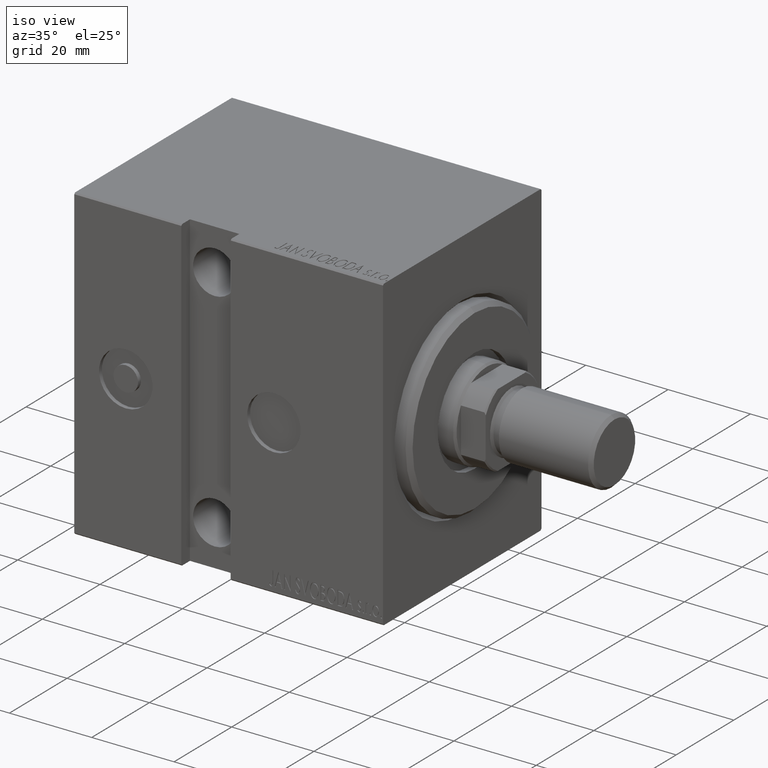
[diagram: clean part render]
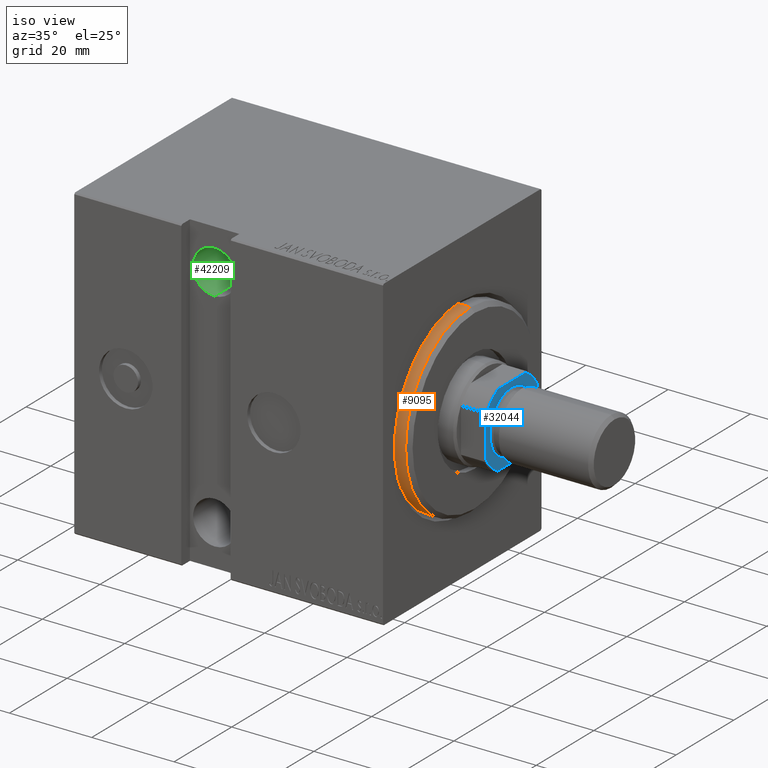
[diagram: same view with three faces highlighted in distinct colors, each labeled with its STEP entity id]
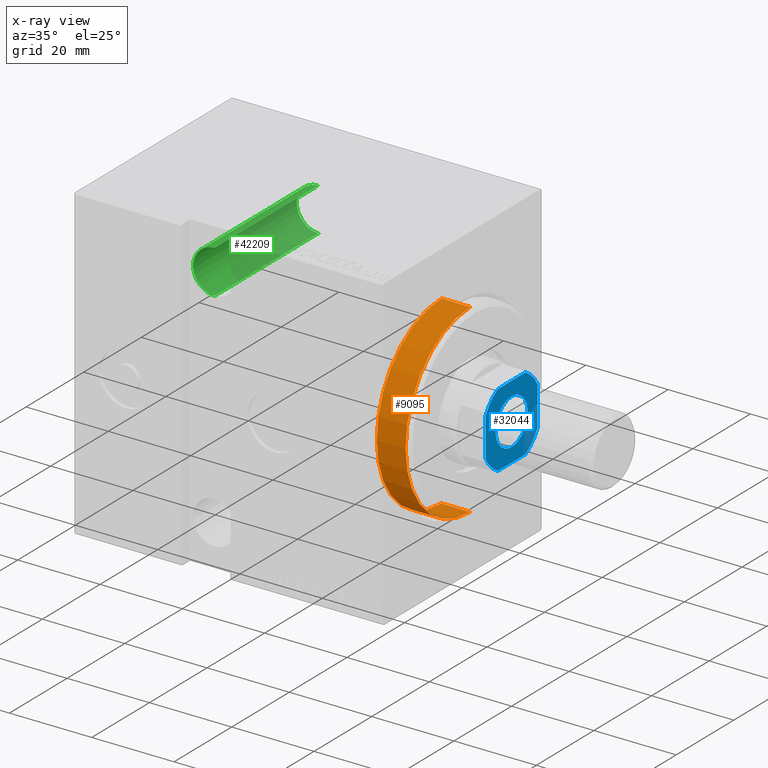
[diagram: x-ray of the same camera — body ghosted, the three highlighted faces saturated]
A machine part, iso view with three faces highlighted in distinct colors.
The next image is the same camera in x-ray (body ghosted, the three faces saturated) — at least one of them is partly hidden behind the body in this view.
Their STEP definitions:

[orange] entity #9095 — the highlighted cylindrical surface (partial cylindrical patch) has radius 22.5 mm, axis along (-1, -0, -0).
#107 = ORIENTED_EDGE ( 'NONE', *, *, #3225, .T. ) ;
#936 = CARTESIAN_POINT ( 'NONE',  ( 1.999999999999978462, 0.000000000000000000, 22.50000000000000355 ) ) ;
#2527 = DIRECTION ( 'NONE',  ( 0.000000000000000000, 0.000000000000000000, -1.000000000000000000 ) ) ;
#3225 = EDGE_CURVE ( 'NONE', #28631, #26593, #9223, .T. ) ;
#3390 = FACE_OUTER_BOUND ( 'NONE', #12923, .T. ) ;
#5623 = EDGE_CURVE ( 'NONE', #15018, #42152, #29394, .T. ) ;
#7357 = CARTESIAN_POINT ( 'NONE',  ( -5.000000000000000000, 0.000000000000000000, 0.000000000000000000 ) ) ;
#9095 = ADVANCED_FACE ( 'NONE', ( #3390 ), #23363, .T. ) ;
#9223 = CIRCLE ( 'NONE', #31419, 22.50000000000000355 ) ;
#10453 = ORIENTED_EDGE ( 'NONE', *, *, #35768, .T. ) ;
#12923 = EDGE_LOOP ( 'NONE', ( #40783, #107, #10453, #23501 ) ) ;
#15018 = VERTEX_POINT ( 'NONE', #29993 ) ;
#16567 = VECTOR ( 'NONE', #24161, 1000.000000000000000 ) ;
#17406 = DIRECTION ( 'NONE',  ( -1.000000000000000000, -0.000000000000000000, -0.000000000000000000 ) ) ;
#17854 = CARTESIAN_POINT ( 'NONE',  ( 3.000000000000000000, 2.755455298081545172E-15, -22.50000000000000355 ) ) ;
#21052 = AXIS2_PLACEMENT_3D ( 'NONE', #7357, #26445, #23422 ) ;
#22700 = DIRECTION ( 'NONE',  ( -1.000000000000000000, 0.000000000000000000, 0.000000000000000000 ) ) ;
#23363 = CYLINDRICAL_SURFACE ( 'NONE', #23943, 22.50000000000000355 ) ;
#23422 = DIRECTION ( 'NONE',  ( 0.000000000000000000, 0.000000000000000000, -1.000000000000000000 ) ) ;
#23501 = ORIENTED_EDGE ( 'NONE', *, *, #5623, .T. ) ;
#23943 = AXIS2_PLACEMENT_3D ( 'NONE', #27048, #30092, #37254 ) ;
#24161 = DIRECTION ( 'NONE',  ( -1.000000000000000000, -0.000000000000000000, -0.000000000000000000 ) ) ;
#25152 = VECTOR ( 'NONE', #17406, 1000.000000000000000 ) ;
#25800 = EDGE_CURVE ( 'NONE', #28631, #42152, #33935, .T. ) ;
#26445 = DIRECTION ( 'NONE',  ( 1.000000000000000000, 0.000000000000000000, 0.000000000000000000 ) ) ;
#26593 = VERTEX_POINT ( 'NONE', #936 ) ;
#27048 = CARTESIAN_POINT ( 'NONE',  ( 3.000000000000000000, 0.000000000000000000, 0.000000000000000000 ) ) ;
#27699 = CARTESIAN_POINT ( 'NONE',  ( 1.999999999999978462, 2.755455298081545172E-15, -22.50000000000000355 ) ) ;
#28631 = VERTEX_POINT ( 'NONE', #27699 ) ;
#29394 = CIRCLE ( 'NONE', #21052, 22.50000000000000355 ) ;
#29993 = CARTESIAN_POINT ( 'NONE',  ( -5.000000000000000000, 0.000000000000000000, 22.50000000000000355 ) ) ;
#30092 = DIRECTION ( 'NONE',  ( -1.000000000000000000, -0.000000000000000000, -0.000000000000000000 ) ) ;
#30243 = CARTESIAN_POINT ( 'NONE',  ( 3.000000000000000000, 0.000000000000000000, 22.50000000000000355 ) ) ;
#30592 = CARTESIAN_POINT ( 'NONE',  ( -5.000000000000000000, 2.755455298081545172E-15, -22.50000000000000355 ) ) ;
#31419 = AXIS2_PLACEMENT_3D ( 'NONE', #32265, #22700, #2527 ) ;
#32265 = CARTESIAN_POINT ( 'NONE',  ( 1.999999999999978462, 0.000000000000000000, 0.000000000000000000 ) ) ;
#33935 = LINE ( 'NONE', #17854, #16567 ) ;
#35768 = EDGE_CURVE ( 'NONE', #26593, #15018, #39792, .T. ) ;
#37254 = DIRECTION ( 'NONE',  ( 0.000000000000000000, 0.000000000000000000, 1.000000000000000000 ) ) ;
#39792 = LINE ( 'NONE', #30243, #25152 ) ;
#40783 = ORIENTED_EDGE ( 'NONE', *, *, #25800, .F. ) ;
#42152 = VERTEX_POINT ( 'NONE', #30592 ) ;

[blue] entity #32044 — the highlighted planar face has unit normal (1, 0, -0).
#12 = FACE_BOUND ( 'NONE', #20397, .T. ) ;
#388 = VERTEX_POINT ( 'NONE', #16647 ) ;
#454 = DIRECTION ( 'NONE',  ( -0.000000000000000000, 0.000000000000000000, 1.000000000000000000 ) ) ;
#1040 = CARTESIAN_POINT ( 'NONE',  ( -9.000000000000001776, 4.799999999999986500, 77.00000000000001421 ) ) ;
#1482 = DIRECTION ( 'NONE',  ( 1.000000000000000000, 0.000000000000000000, 0.000000000000000000 ) ) ;
#1707 = CARTESIAN_POINT ( 'NONE',  ( 0.000000000000000000, 0.000000000000000000, 77.00000000000001421 ) ) ;
#2687 = CARTESIAN_POINT ( 'NONE',  ( -4.799999999999990941, 8.999999999999998224, 77.00000000000001421 ) ) ;
#2973 = DIRECTION ( 'NONE',  ( 1.000000000000000000, 0.000000000000000000, 0.000000000000000000 ) ) ;
#3434 = DIRECTION ( 'NONE',  ( -1.000000000000000000, -0.000000000000000000, -0.000000000000000000 ) ) ;
#3526 = VERTEX_POINT ( 'NONE', #2687 ) ;
#5241 = VERTEX_POINT ( 'NONE', #24692 ) ;
#5347 = AXIS2_PLACEMENT_3D ( 'NONE', #6134, #42184, #39544 ) ;
#6134 = CARTESIAN_POINT ( 'NONE',  ( 0.000000000000000000, 0.000000000000000000, 77.00000000000001421 ) ) ;
#6302 = EDGE_CURVE ( 'NONE', #29843, #7428, #40692, .T. ) ;
#6342 = DIRECTION ( 'NONE',  ( 1.000000000000000000, 0.000000000000000000, 0.000000000000000000 ) ) ;
#6961 = FACE_OUTER_BOUND ( 'NONE', #15276, .T. ) ;
#7117 = AXIS2_PLACEMENT_3D ( 'NONE', #25964, #42695, #13360 ) ;
#7394 = EDGE_CURVE ( 'NONE', #26230, #388, #9179, .T. ) ;
#7428 = VERTEX_POINT ( 'NONE', #12643 ) ;
#7825 = CIRCLE ( 'NONE', #7117, 10.19999999999999929 ) ;
#8982 = CARTESIAN_POINT ( 'NONE',  ( -4.799999999999995381, -9.000000000000001776, 77.00000000000001421 ) ) ;
#9021 = EDGE_CURVE ( 'NONE', #33212, #12447, #38483, .T. ) ;
#9179 = LINE ( 'NONE', #15469, #28718 ) ;
#9355 = CARTESIAN_POINT ( 'NONE',  ( 5.550000000000013145, 0.000000000000000000, 77.00000000000001421 ) ) ;
#9677 = EDGE_CURVE ( 'NONE', #12447, #33212, #27409, .T. ) ;
#10159 = LINE ( 'NONE', #35797, #37541 ) ;
#10885 = DIRECTION ( 'NONE',  ( 1.000000000000000000, 0.000000000000000000, 0.000000000000000000 ) ) ;
#12319 = ORIENTED_EDGE ( 'NONE', *, *, #32333, .T. ) ;
#12447 = VERTEX_POINT ( 'NONE', #21979 ) ;
#12643 = CARTESIAN_POINT ( 'NONE',  ( 4.800000000000006928, -9.000000000000001776, 77.00000000000001421 ) ) ;
#12769 = DIRECTION ( 'NONE',  ( -1.927470528863119049E-16, 1.000000000000000000, -0.000000000000000000 ) ) ;
#12785 = VERTEX_POINT ( 'NONE', #23143 ) ;
#12966 = AXIS2_PLACEMENT_3D ( 'NONE', #1707, #17982, #1482 ) ;
#13244 = PLANE ( 'NONE',  #19532 ) ;
#13360 = DIRECTION ( 'NONE',  ( 1.000000000000000000, 0.000000000000000000, 0.000000000000000000 ) ) ;
#13880 = ORIENTED_EDGE ( 'NONE', *, *, #34584, .T. ) ;
#14629 = EDGE_CURVE ( 'NONE', #7428, #35190, #33775, .T. ) ;
#14798 = ORIENTED_EDGE ( 'NONE', *, *, #23859, .T. ) ;
#15276 = EDGE_LOOP ( 'NONE', ( #28086, #32569, #12319, #14798, #37754, #13880, #29164, #24572 ) ) ;
#15469 = CARTESIAN_POINT ( 'NONE',  ( -9.000000000000001776, 8.999999999999998224, 77.00000000000001421 ) ) ;
#15686 = DIRECTION ( 'NONE',  ( 1.927470528863119049E-16, -1.000000000000000000, 0.000000000000000000 ) ) ;
#16409 = DIRECTION ( 'NONE',  ( 0.000000000000000000, -0.000000000000000000, -1.000000000000000000 ) ) ;
#16647 = CARTESIAN_POINT ( 'NONE',  ( -8.999999999999998224, -4.799999999999999822, 77.00000000000001421 ) ) ;
#16932 = CARTESIAN_POINT ( 'NONE',  ( 0.000000000000000000, 0.000000000000000000, 77.00000000000001421 ) ) ;
#17912 = AXIS2_PLACEMENT_3D ( 'NONE', #36079, #42195, #6342 ) ;
#17982 = DIRECTION ( 'NONE',  ( -0.000000000000000000, 0.000000000000000000, 1.000000000000000000 ) ) ;
#18405 = EDGE_CURVE ( 'NONE', #12785, #5241, #41404, .T. ) ;
#19532 = AXIS2_PLACEMENT_3D ( 'NONE', #16932, #454, #40184 ) ;
#20397 = EDGE_LOOP ( 'NONE', ( #30318, #21026 ) ) ;
#20707 = DIRECTION ( 'NONE',  ( 1.000000000000000000, 0.000000000000000000, 0.000000000000000000 ) ) ;
#21026 = ORIENTED_EDGE ( 'NONE', *, *, #9677, .T. ) ;
#21979 = CARTESIAN_POINT ( 'NONE',  ( -5.550000000000013145, 6.796789735267826558E-16, 77.00000000000001421 ) ) ;
#21994 = EDGE_CURVE ( 'NONE', #35190, #12785, #29274, .T. ) ;
#23143 = CARTESIAN_POINT ( 'NONE',  ( 8.999999999999998224, 4.800000000000010481, 77.00000000000001421 ) ) ;
#23859 = EDGE_CURVE ( 'NONE', #3526, #26230, #36633, .T. ) ;
#24572 = ORIENTED_EDGE ( 'NONE', *, *, #14629, .T. ) ;
#24692 = CARTESIAN_POINT ( 'NONE',  ( 4.800000000000012257, 8.999999999999998224, 77.00000000000001421 ) ) ;
#25964 = CARTESIAN_POINT ( 'NONE',  ( 0.000000000000000000, 0.000000000000000000, 77.00000000000001421 ) ) ;
#26230 = VERTEX_POINT ( 'NONE', #1040 ) ;
#27409 = CIRCLE ( 'NONE', #28784, 5.550000000000013145 ) ;
#28086 = ORIENTED_EDGE ( 'NONE', *, *, #21994, .T. ) ;
#28718 = VECTOR ( 'NONE', #15686, 1000.000000000000000 ) ;
#28784 = AXIS2_PLACEMENT_3D ( 'NONE', #37365, #31279, #10885 ) ;
#29164 = ORIENTED_EDGE ( 'NONE', *, *, #6302, .T. ) ;
#29274 = LINE ( 'NONE', #42532, #31057 ) ;
#29843 = VERTEX_POINT ( 'NONE', #8982 ) ;
#30318 = ORIENTED_EDGE ( 'NONE', *, *, #9021, .T. ) ;
#31057 = VECTOR ( 'NONE', #12769, 1000.000000000000000 ) ;
#31279 = DIRECTION ( 'NONE',  ( 0.000000000000000000, -0.000000000000000000, -1.000000000000000000 ) ) ;
#31331 = CARTESIAN_POINT ( 'NONE',  ( -8.999999999999998224, -9.000000000000001776, 77.00000000000001421 ) ) ;
#32044 = ADVANCED_FACE ( 'NONE', ( #12, #6961 ), #13244, .T. ) ;
#32333 = EDGE_CURVE ( 'NONE', #5241, #3526, #10159, .T. ) ;
#32569 = ORIENTED_EDGE ( 'NONE', *, *, #18405, .T. ) ;
#33212 = VERTEX_POINT ( 'NONE', #9355 ) ;
#33775 = CIRCLE ( 'NONE', #12966, 10.20000000000000462 ) ;
#34584 = EDGE_CURVE ( 'NONE', #388, #29843, #7825, .T. ) ;
#35190 = VERTEX_POINT ( 'NONE', #37490 ) ;
#35797 = CARTESIAN_POINT ( 'NONE',  ( -9.000000000000001776, 8.999999999999998224, 77.00000000000001421 ) ) ;
#36079 = CARTESIAN_POINT ( 'NONE',  ( 0.000000000000000000, 0.000000000000000000, 77.00000000000001421 ) ) ;
#36633 = CIRCLE ( 'NONE', #17912, 10.19999999999999396 ) ;
#37114 = AXIS2_PLACEMENT_3D ( 'NONE', #38815, #16409, #2973 ) ;
#37365 = CARTESIAN_POINT ( 'NONE',  ( 0.000000000000000000, 0.000000000000000000, 77.00000000000001421 ) ) ;
#37490 = CARTESIAN_POINT ( 'NONE',  ( 9.000000000000001776, -4.800000000000007816, 77.00000000000001421 ) ) ;
#37541 = VECTOR ( 'NONE', #3434, 1000.000000000000000 ) ;
#37754 = ORIENTED_EDGE ( 'NONE', *, *, #7394, .T. ) ;
#38424 = VECTOR ( 'NONE', #20707, 1000.000000000000000 ) ;
#38483 = CIRCLE ( 'NONE', #37114, 5.550000000000013145 ) ;
#38815 = CARTESIAN_POINT ( 'NONE',  ( 0.000000000000000000, 0.000000000000000000, 77.00000000000001421 ) ) ;
#39544 = DIRECTION ( 'NONE',  ( 1.000000000000000000, 0.000000000000000000, 0.000000000000000000 ) ) ;
#40184 = DIRECTION ( 'NONE',  ( 1.000000000000000000, 0.000000000000000000, 0.000000000000000000 ) ) ;
#40692 = LINE ( 'NONE', #31331, #38424 ) ;
#41404 = CIRCLE ( 'NONE', #5347, 10.20000000000000462 ) ;
#42184 = DIRECTION ( 'NONE',  ( -0.000000000000000000, 0.000000000000000000, 1.000000000000000000 ) ) ;
#42195 = DIRECTION ( 'NONE',  ( -0.000000000000000000, 0.000000000000000000, 1.000000000000000000 ) ) ;
#42532 = CARTESIAN_POINT ( 'NONE',  ( 8.999999999999998224, 8.999999999999998224, 77.00000000000001421 ) ) ;
#42695 = DIRECTION ( 'NONE',  ( -0.000000000000000000, 0.000000000000000000, 1.000000000000000000 ) ) ;

[green] entity #42209 — the highlighted cylindrical surface (edge-blend (fillet) strip) has radius 5.25 mm, axis along (0, -1, 0).
#1316 = DIRECTION ( 'NONE',  ( -0.000000000000000000, 1.000000000000000000, -1.963837897332234442E-16 ) ) ;
#1522 = DIRECTION ( 'NONE',  ( 0.000000000000000000, -3.304235192336776991E-16, -1.000000000000000000 ) ) ;
#1690 = DIRECTION ( 'NONE',  ( 0.000000000000000000, 0.000000000000000000, -1.000000000000000000 ) ) ;
#2355 = CARTESIAN_POINT ( 'NONE',  ( 43.00000000000001421, -27.50000000000002487, 27.50000000000000000 ) ) ;
#2990 = VERTEX_POINT ( 'NONE', #36628 ) ;
#3032 = LINE ( 'NONE', #10180, #15418 ) ;
#5379 = DIRECTION ( 'NONE',  ( 0.000000000000000000, -1.000000000000000000, 0.000000000000000000 ) ) ;
#5822 = AXIS2_PLACEMENT_3D ( 'NONE', #8640, #5379, #1690 ) ;
#6459 = VERTEX_POINT ( 'NONE', #28294 ) ;
#7488 = VERTEX_POINT ( 'NONE', #33908 ) ;
#8640 = CARTESIAN_POINT ( 'NONE',  ( 43.00000000000001421, 24.50000000000000000, 27.50000000000000000 ) ) ;
#8656 = FACE_OUTER_BOUND ( 'NONE', #33140, .T. ) ;
#8936 = ORIENTED_EDGE ( 'NONE', *, *, #40965, .F. ) ;
#9303 = ORIENTED_EDGE ( 'NONE', *, *, #30123, .F. ) ;
#10180 = CARTESIAN_POINT ( 'NONE',  ( 43.00000000000001421, -27.50000000000002487, 22.25000000000000355 ) ) ;
#10710 = AXIS2_PLACEMENT_3D ( 'NONE', #15197, #1316, #1522 ) ;
#10971 = LINE ( 'NONE', #41586, #40502 ) ;
#11476 = DIRECTION ( 'NONE',  ( -0.000000000000000000, 1.000000000000000000, -0.000000000000000000 ) ) ;
#12535 = VERTEX_POINT ( 'NONE', #41751 ) ;
#12870 = ORIENTED_EDGE ( 'NONE', *, *, #38826, .T. ) ;
#12963 = ORIENTED_EDGE ( 'NONE', *, *, #39674, .F. ) ;
#13523 = AXIS2_PLACEMENT_3D ( 'NONE', #2355, #11476, #41454 ) ;
#15197 = CARTESIAN_POINT ( 'NONE',  ( 43.00000000000001421, -11.49999999999999289, 27.50000000000000000 ) ) ;
#15418 = VECTOR ( 'NONE', #33191, 1000.000000000000000 ) ;
#18631 = CYLINDRICAL_SURFACE ( 'NONE', #13523, 5.249999999999994671 ) ;
#24559 = CIRCLE ( 'NONE', #5822, 5.249999999999997335 ) ;
#28294 = CARTESIAN_POINT ( 'NONE',  ( 43.00000000000001421, -11.49999999999999112, 32.74999999999999289 ) ) ;
#29422 = CIRCLE ( 'NONE', #10710, 5.249999999999997335 ) ;
#30123 = EDGE_CURVE ( 'NONE', #7488, #12535, #3032, .T. ) ;
#33140 = EDGE_LOOP ( 'NONE', ( #9303, #8936, #12870, #12963 ) ) ;
#33191 = DIRECTION ( 'NONE',  ( -0.000000000000000000, 1.000000000000000000, -0.000000000000000000 ) ) ;
#33908 = CARTESIAN_POINT ( 'NONE',  ( 43.00000000000001421, -11.49999999999999467, 22.25000000000000355 ) ) ;
#36628 = CARTESIAN_POINT ( 'NONE',  ( 43.00000000000001421, 24.50000000000000000, 32.74999999999999289 ) ) ;
#37452 = DIRECTION ( 'NONE',  ( -0.000000000000000000, 1.000000000000000000, -0.000000000000000000 ) ) ;
#38826 = EDGE_CURVE ( 'NONE', #6459, #2990, #10971, .T. ) ;
#39674 = EDGE_CURVE ( 'NONE', #12535, #2990, #24559, .T. ) ;
#40502 = VECTOR ( 'NONE', #37452, 1000.000000000000000 ) ;
#40965 = EDGE_CURVE ( 'NONE', #6459, #7488, #29422, .T. ) ;
#41454 = DIRECTION ( 'NONE',  ( 0.000000000000000000, 0.000000000000000000, 1.000000000000000000 ) ) ;
#41586 = CARTESIAN_POINT ( 'NONE',  ( 43.00000000000001421, -27.50000000000002487, 32.74999999999999289 ) ) ;
#41751 = CARTESIAN_POINT ( 'NONE',  ( 43.00000000000001421, 24.50000000000000000, 22.25000000000000355 ) ) ;
#42209 = ADVANCED_FACE ( 'NONE', ( #8656 ), #18631, .F. ) ;